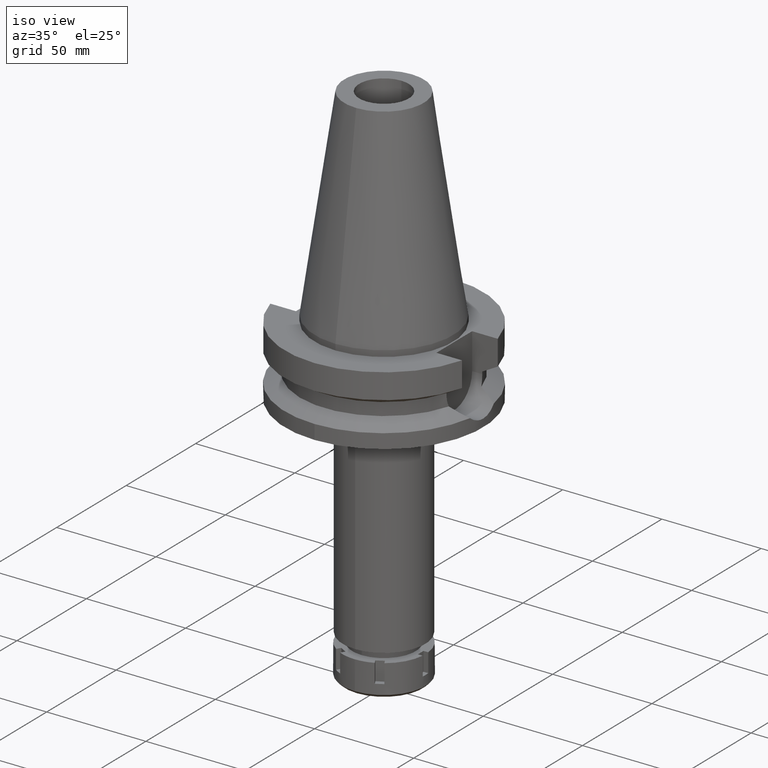
[diagram: clean part render]
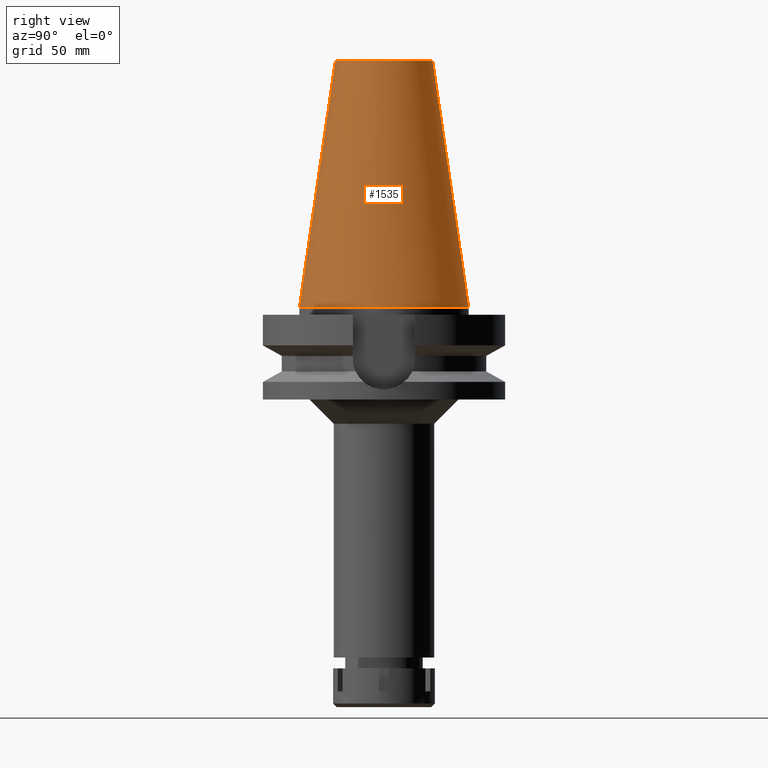
[diagram: tour spotlight — one face highlighted and labeled with its STEP entity id]
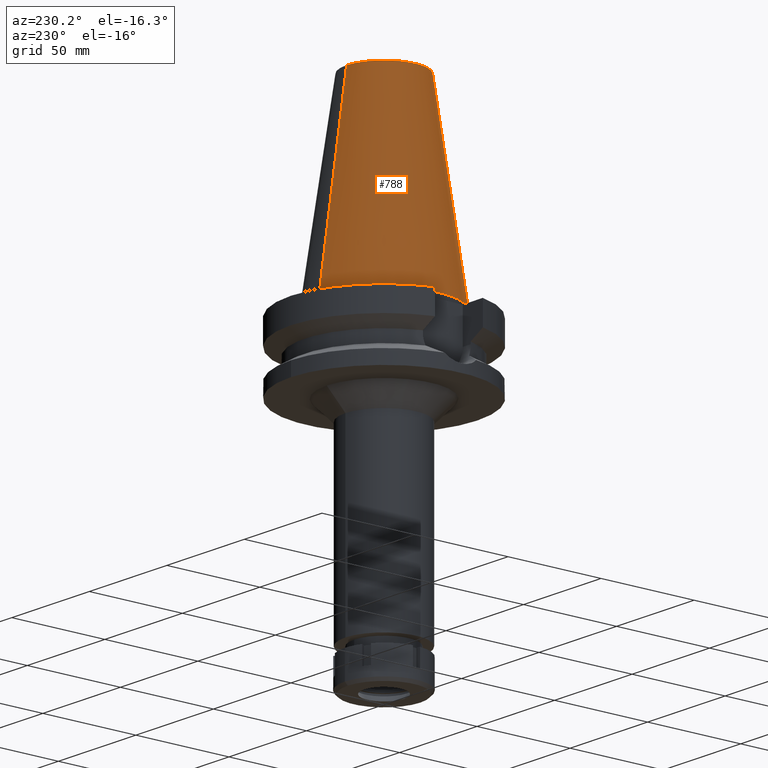
[diagram: tour spotlight — one face highlighted and labeled with its STEP entity id]
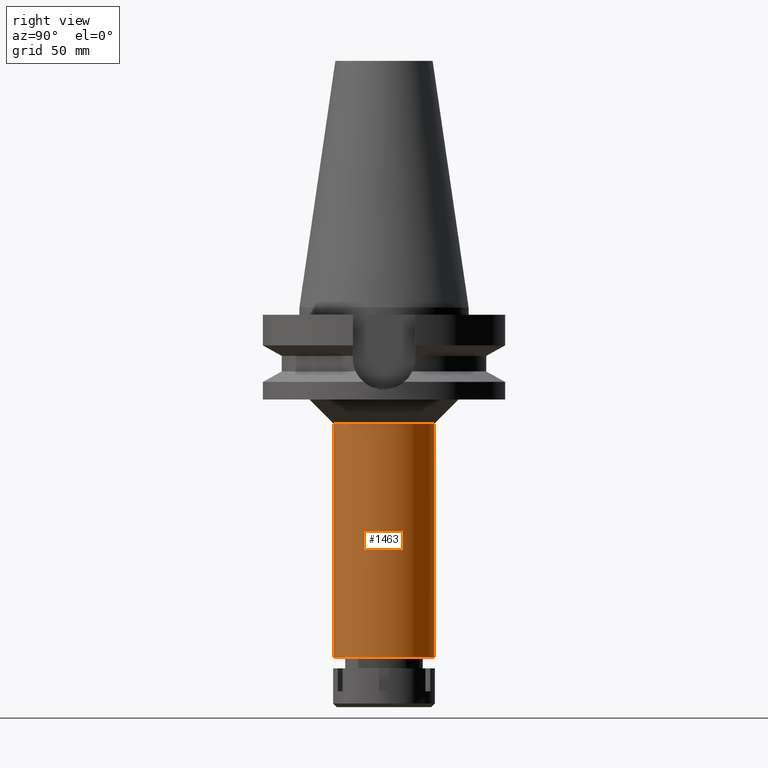
[diagram: tour spotlight — one face highlighted and labeled with its STEP entity id]
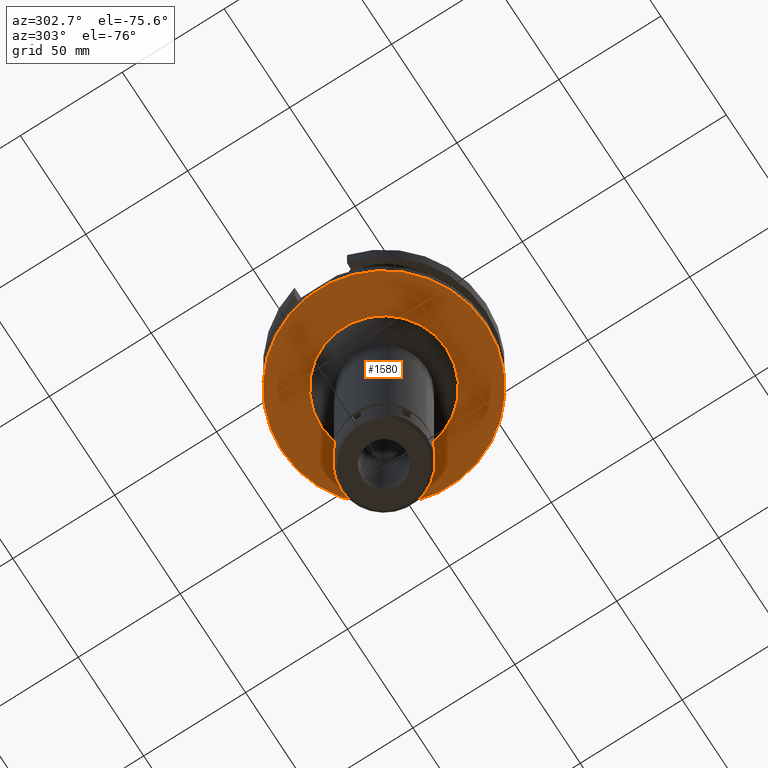
[diagram: tour spotlight — one face highlighted and labeled with its STEP entity id]
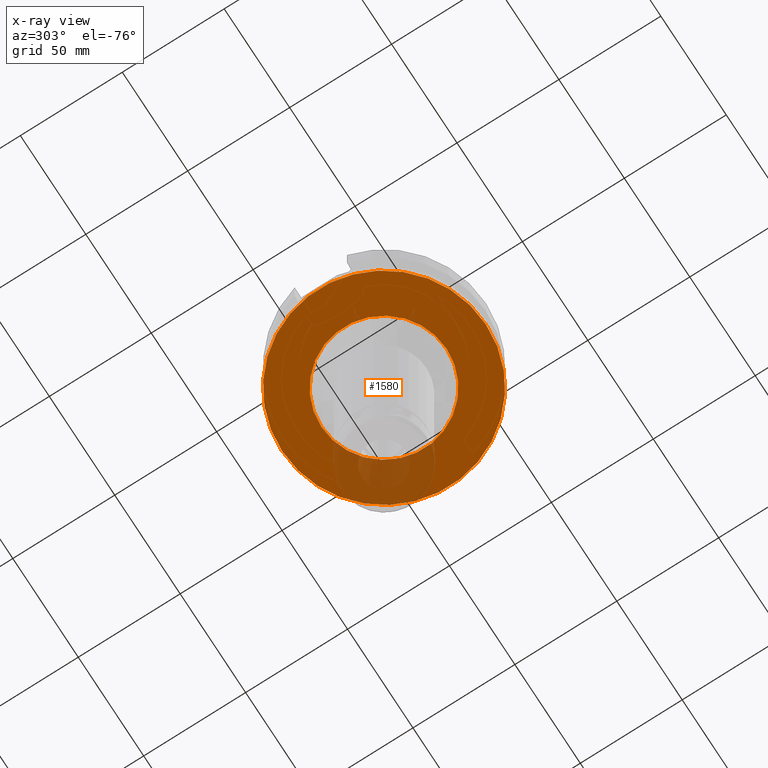
[diagram: x-ray of the same camera — body ghosted, this tour face saturated]
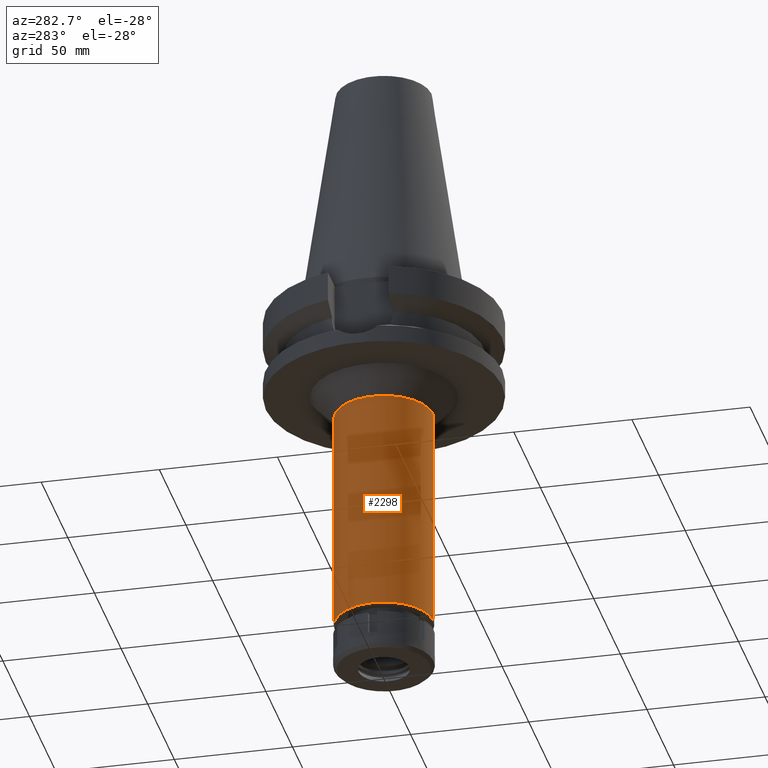
[diagram: tour spotlight — one face highlighted and labeled with its STEP entity id]
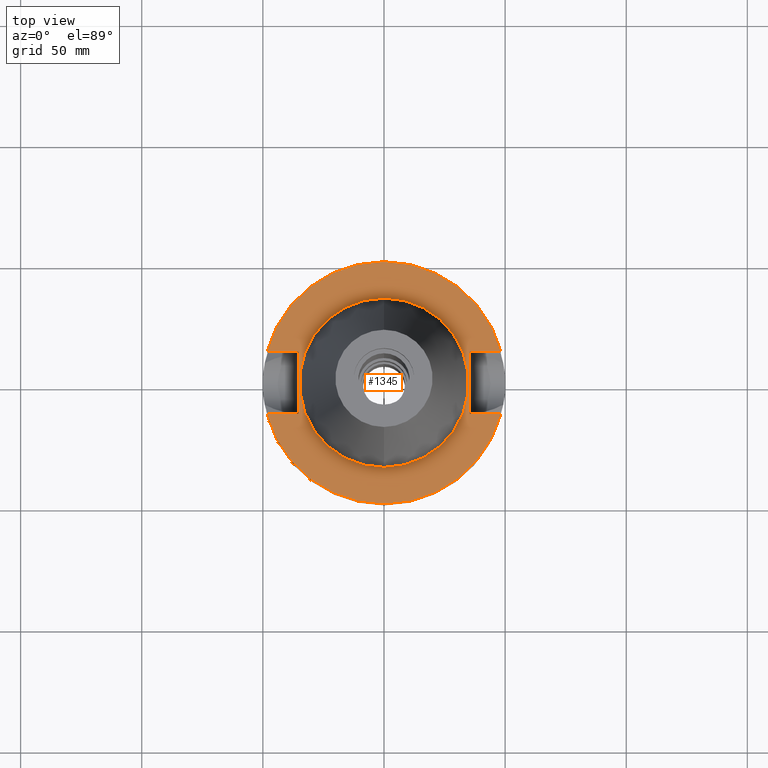
[diagram: tour spotlight — one face highlighted and labeled with its STEP entity id]
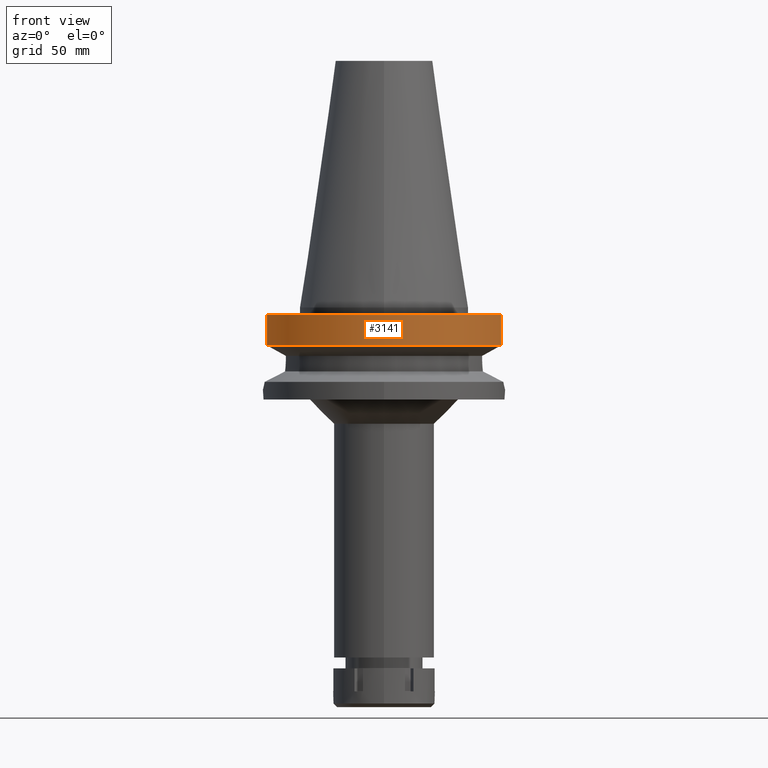
[diagram: tour spotlight — one face highlighted and labeled with its STEP entity id]
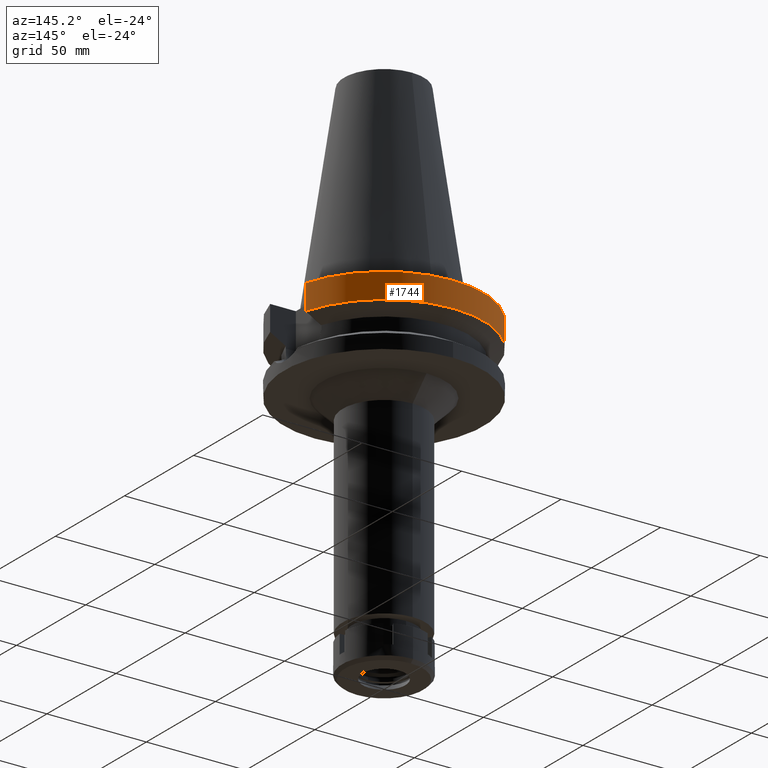
[diagram: tour spotlight — one face highlighted and labeled with its STEP entity id]
A machine part: a face-by-face anatomy tour. The part has 93 B-rep faces; the first image is the clean iso view, then the 8 largest visible faces are spotlighted one at a time (largest first), each with its STEP entity span.

Face 1 — right view, entity #1535. In plain terms, the highlighted conical surface has half-angle 8.297 deg.
Definition (entity closure, byte-faithful):
#101 = CONICAL_SURFACE ( 'NONE', #1184, 27.50221485948000222, 0.1448099680379422438 ) ;
#138 = EDGE_CURVE ( 'NONE', #170, #2703, #1420, .T. ) ;
#168 = CARTESIAN_POINT ( 'NONE',  ( 0.0000000000000000000, 20.07942971896000017, 101.7999999999999972 ) ) ;
#170 = VERTEX_POINT ( 'NONE', #3561 ) ;
#178 = DIRECTION ( 'NONE',  ( 0.0000000000000000000, 0.1443043893538948075, -0.9895333461855641000 ) ) ;
#307 = CARTESIAN_POINT ( 'NONE',  ( 0.0000000000000000000, -20.07942971896000017, 101.7999999999999972 ) ) ;
#350 = EDGE_CURVE ( 'NONE', #1279, #3449, #2427, .T. ) ;
#927 = DIRECTION ( 'NONE',  ( 0.0000000000000000000, -1.000000000000000000, 0.0000000000000000000 ) ) ;
#1184 = AXIS2_PLACEMENT_3D ( 'NONE', #2948, #1538, #927 ) ;
#1279 = VERTEX_POINT ( 'NONE', #168 ) ;
#1338 = ORIENTED_EDGE ( 'NONE', *, *, #138, .F. ) ;
#1420 = CIRCLE ( 'NONE', #3431, 34.92499999999999716 ) ;
#1523 = DIRECTION ( 'NONE',  ( 0.0000000000000000000, 1.000000000000000000, 0.0000000000000000000 ) ) ;
#1535 = ADVANCED_FACE ( 'NONE', ( #1836 ), #101, .T. ) ;
#1538 = DIRECTION ( 'NONE',  ( 0.0000000000000000000, 0.0000000000000000000, -1.000000000000000000 ) ) ;
#1582 = CARTESIAN_POINT ( 'NONE',  ( 0.0000000000000000000, -34.92499999999999716, 5.258016244624999869E-13 ) ) ;
#1611 = LINE ( 'NONE', #2743, #3612 ) ;
#1799 = EDGE_LOOP ( 'NONE', ( #2995, #2977, #1338, #3034 ) ) ;
#1836 = FACE_OUTER_BOUND ( 'NONE', #1799, .T. ) ;
#2270 = DIRECTION ( 'NONE',  ( 0.0000000000000000000, -0.1443043893538948075, -0.9895333461855641000 ) ) ;
#2321 = EDGE_CURVE ( 'NONE', #1279, #170, #1611, .T. ) ;
#2427 = CIRCLE ( 'NONE', #2789, 20.07942971896000017 ) ;
#2560 = LINE ( 'NONE', #3687, #2800 ) ;
#2637 = DIRECTION ( 'NONE',  ( 0.0000000000000000000, 1.000000000000000000, 0.0000000000000000000 ) ) ;
#2703 = VERTEX_POINT ( 'NONE', #1582 ) ;
#2743 = CARTESIAN_POINT ( 'NONE',  ( 0.0000000000000000000, 20.07942971896000017, 101.7999999999999972 ) ) ;
#2789 = AXIS2_PLACEMENT_3D ( 'NONE', #3231, #3006, #1523 ) ;
#2800 = VECTOR ( 'NONE', #2270, 1000.000000000000114 ) ;
#2893 = EDGE_CURVE ( 'NONE', #3449, #2703, #2560, .T. ) ;
#2934 = DIRECTION ( 'NONE',  ( 0.0000000000000000000, 0.0000000000000000000, -1.000000000000000000 ) ) ;
#2948 = CARTESIAN_POINT ( 'NONE',  ( 0.0000000000000000000, 1.847992019912999597E-14, 50.89999999999999858 ) ) ;
#2977 = ORIENTED_EDGE ( 'NONE', *, *, #2893, .T. ) ;
#2995 = ORIENTED_EDGE ( 'NONE', *, *, #350, .T. ) ;
#3006 = DIRECTION ( 'NONE',  ( 0.0000000000000000000, 0.0000000000000000000, -1.000000000000000000 ) ) ;
#3034 = ORIENTED_EDGE ( 'NONE', *, *, #2321, .F. ) ;
#3190 = CARTESIAN_POINT ( 'NONE',  ( 0.0000000000000000000, 1.847992019912999597E-14, 3.979039320256999774E-13 ) ) ;
#3231 = CARTESIAN_POINT ( 'NONE',  ( 0.0000000000000000000, 1.847992019912999597E-14, 101.7999999999999972 ) ) ;
#3431 = AXIS2_PLACEMENT_3D ( 'NONE', #3190, #2934, #2637 ) ;
#3449 = VERTEX_POINT ( 'NONE', #307 ) ;
#3561 = CARTESIAN_POINT ( 'NONE',  ( 0.0000000000000000000, 34.92499999999999716, 5.258016244624999869E-13 ) ) ;
#3612 = VECTOR ( 'NONE', #178, 1000.000000000000114 ) ;
#3687 = CARTESIAN_POINT ( 'NONE',  ( 0.0000000000000000000, -20.07942971896000017, 101.7999999999999972 ) ) ;

Face 2 — auxiliary view, entity #788. In plain terms, the highlighted conical surface has half-angle 8.297 deg.
Definition (entity closure, byte-faithful):
#144 = DIRECTION ( 'NONE',  ( 0.0000000000000000000, -1.000000000000000000, 0.0000000000000000000 ) ) ;
#168 = CARTESIAN_POINT ( 'NONE',  ( 0.0000000000000000000, 20.07942971896000017, 101.7999999999999972 ) ) ;
#170 = VERTEX_POINT ( 'NONE', #3561 ) ;
#178 = DIRECTION ( 'NONE',  ( 0.0000000000000000000, 0.1443043893538948075, -0.9895333461855641000 ) ) ;
#209 = ORIENTED_EDGE ( 'NONE', *, *, #2321, .T. ) ;
#270 = CIRCLE ( 'NONE', #2960, 34.92499999999999716 ) ;
#278 = ORIENTED_EDGE ( 'NONE', *, *, #2893, .F. ) ;
#307 = CARTESIAN_POINT ( 'NONE',  ( 0.0000000000000000000, -20.07942971896000017, 101.7999999999999972 ) ) ;
#688 = CONICAL_SURFACE ( 'NONE', #2070, 27.50221485948000222, 0.1448099680379422438 ) ;
#788 = ADVANCED_FACE ( 'NONE', ( #1606 ), #688, .T. ) ;
#1279 = VERTEX_POINT ( 'NONE', #168 ) ;
#1310 = DIRECTION ( 'NONE',  ( 0.0000000000000000000, 0.0000000000000000000, -1.000000000000000000 ) ) ;
#1334 = CARTESIAN_POINT ( 'NONE',  ( 0.0000000000000000000, 1.847992019912999597E-14, 3.979039320256999774E-13 ) ) ;
#1399 = CARTESIAN_POINT ( 'NONE',  ( 0.0000000000000000000, 1.847992019912999597E-14, 50.89999999999999858 ) ) ;
#1582 = CARTESIAN_POINT ( 'NONE',  ( 0.0000000000000000000, -34.92499999999999716, 5.258016244624999869E-13 ) ) ;
#1606 = FACE_OUTER_BOUND ( 'NONE', #3645, .T. ) ;
#1611 = LINE ( 'NONE', #2743, #3612 ) ;
#1645 = DIRECTION ( 'NONE',  ( 0.0000000000000000000, -1.000000000000000000, 0.0000000000000000000 ) ) ;
#1861 = AXIS2_PLACEMENT_3D ( 'NONE', #3110, #2831, #2983 ) ;
#2070 = AXIS2_PLACEMENT_3D ( 'NONE', #1399, #2238, #1645 ) ;
#2238 = DIRECTION ( 'NONE',  ( 0.0000000000000000000, 0.0000000000000000000, -1.000000000000000000 ) ) ;
#2270 = DIRECTION ( 'NONE',  ( 0.0000000000000000000, -0.1443043893538948075, -0.9895333461855641000 ) ) ;
#2321 = EDGE_CURVE ( 'NONE', #1279, #170, #1611, .T. ) ;
#2560 = LINE ( 'NONE', #3687, #2800 ) ;
#2581 = EDGE_CURVE ( 'NONE', #2703, #170, #270, .T. ) ;
#2703 = VERTEX_POINT ( 'NONE', #1582 ) ;
#2743 = CARTESIAN_POINT ( 'NONE',  ( 0.0000000000000000000, 20.07942971896000017, 101.7999999999999972 ) ) ;
#2800 = VECTOR ( 'NONE', #2270, 1000.000000000000114 ) ;
#2831 = DIRECTION ( 'NONE',  ( 0.0000000000000000000, 0.0000000000000000000, -1.000000000000000000 ) ) ;
#2893 = EDGE_CURVE ( 'NONE', #3449, #2703, #2560, .T. ) ;
#2960 = AXIS2_PLACEMENT_3D ( 'NONE', #1334, #1310, #144 ) ;
#2983 = DIRECTION ( 'NONE',  ( 0.0000000000000000000, -1.000000000000000000, 0.0000000000000000000 ) ) ;
#3005 = ORIENTED_EDGE ( 'NONE', *, *, #3278, .T. ) ;
#3049 = CIRCLE ( 'NONE', #1861, 20.07942971896000017 ) ;
#3110 = CARTESIAN_POINT ( 'NONE',  ( 0.0000000000000000000, 1.847992019912999597E-14, 101.7999999999999972 ) ) ;
#3246 = ORIENTED_EDGE ( 'NONE', *, *, #2581, .F. ) ;
#3278 = EDGE_CURVE ( 'NONE', #3449, #1279, #3049, .T. ) ;
#3449 = VERTEX_POINT ( 'NONE', #307 ) ;
#3561 = CARTESIAN_POINT ( 'NONE',  ( 0.0000000000000000000, 34.92499999999999716, 5.258016244624999869E-13 ) ) ;
#3612 = VECTOR ( 'NONE', #178, 1000.000000000000114 ) ;
#3645 = EDGE_LOOP ( 'NONE', ( #3246, #278, #3005, #209 ) ) ;
#3687 = CARTESIAN_POINT ( 'NONE',  ( 0.0000000000000000000, -20.07942971896000017, 101.7999999999999972 ) ) ;

Face 3 — right view, entity #1463. In plain terms, the highlighted cylindrical surface (partial cylindrical patch) has radius 20.75 mm, axis along (0, 0, -1).
Definition (entity closure, byte-faithful):
#42 = DIRECTION ( 'NONE',  ( 0.0000000000000000000, 0.0000000000000000000, -1.000000000000000000 ) ) ;
#47 = VECTOR ( 'NONE', #42, 1000.000000000000000 ) ;
#128 = VERTEX_POINT ( 'NONE', #142 ) ;
#142 = CARTESIAN_POINT ( 'NONE',  ( 0.0000000000000000000, 20.75000000000000000, -48.00000000000000000 ) ) ;
#155 = ORIENTED_EDGE ( 'NONE', *, *, #411, .T. ) ;
#228 = AXIS2_PLACEMENT_3D ( 'NONE', #1962, #552, #1157 ) ;
#269 = ORIENTED_EDGE ( 'NONE', *, *, #1511, .T. ) ;
#330 = ORIENTED_EDGE ( 'NONE', *, *, #622, .T. ) ;
#351 = LINE ( 'NONE', #1820, #47 ) ;
#411 = EDGE_CURVE ( 'NONE', #128, #3607, #3672, .T. ) ;
#552 = DIRECTION ( 'NONE',  ( 0.0000000000000000000, 0.0000000000000000000, -1.000000000000000000 ) ) ;
#599 = LINE ( 'NONE', #3493, #3372 ) ;
#622 = EDGE_CURVE ( 'NONE', #3607, #3311, #599, .T. ) ;
#652 = EDGE_LOOP ( 'NONE', ( #155, #330, #269, #1966 ) ) ;
#653 = DIRECTION ( 'NONE',  ( 0.0000000000000000000, 0.0000000000000000000, -1.000000000000000000 ) ) ;
#855 = CARTESIAN_POINT ( 'NONE',  ( 0.0000000000000000000, 2.629806536488999751E-14, -144.5000000000000000 ) ) ;
#972 = VERTEX_POINT ( 'NONE', #1697 ) ;
#1157 = DIRECTION ( 'NONE',  ( 0.0000000000000000000, -1.000000000000000000, 0.0000000000000000000 ) ) ;
#1282 = CARTESIAN_POINT ( 'NONE',  ( 0.0000000000000000000, -20.75000000000000000, -48.00000000000000000 ) ) ;
#1463 = ADVANCED_FACE ( 'NONE', ( #3116 ), #2821, .T. ) ;
#1511 = EDGE_CURVE ( 'NONE', #3311, #972, #3380, .T. ) ;
#1581 = DIRECTION ( 'NONE',  ( 0.0000000000000000000, 1.000000000000000000, 0.0000000000000000000 ) ) ;
#1697 = CARTESIAN_POINT ( 'NONE',  ( 0.0000000000000000000, 20.75000000000000000, -144.5000000000000000 ) ) ;
#1728 = DIRECTION ( 'NONE',  ( 0.0000000000000000000, -1.000000000000000000, 0.0000000000000000000 ) ) ;
#1820 = CARTESIAN_POINT ( 'NONE',  ( 0.0000000000000000000, 20.75000000000000000, -48.00000000000000000 ) ) ;
#1840 = AXIS2_PLACEMENT_3D ( 'NONE', #3185, #2677, #1581 ) ;
#1962 = CARTESIAN_POINT ( 'NONE',  ( 0.0000000000000000000, 2.629806536488999751E-14, 114.7399999999999949 ) ) ;
#1966 = ORIENTED_EDGE ( 'NONE', *, *, #2986, .F. ) ;
#2677 = DIRECTION ( 'NONE',  ( 0.0000000000000000000, 0.0000000000000000000, -1.000000000000000000 ) ) ;
#2725 = CARTESIAN_POINT ( 'NONE',  ( 0.0000000000000000000, -20.75000000000000000, -144.5000000000000000 ) ) ;
#2821 = CYLINDRICAL_SURFACE ( 'NONE', #228, 20.75000000000000000 ) ;
#2986 = EDGE_CURVE ( 'NONE', #128, #972, #351, .T. ) ;
#3116 = FACE_OUTER_BOUND ( 'NONE', #652, .T. ) ;
#3130 = DIRECTION ( 'NONE',  ( 0.0000000000000000000, 0.0000000000000000000, 1.000000000000000000 ) ) ;
#3185 = CARTESIAN_POINT ( 'NONE',  ( 0.0000000000000000000, 0.0000000000000000000, -48.00000000000000000 ) ) ;
#3202 = AXIS2_PLACEMENT_3D ( 'NONE', #855, #3130, #1728 ) ;
#3311 = VERTEX_POINT ( 'NONE', #2725 ) ;
#3372 = VECTOR ( 'NONE', #653, 1000.000000000000000 ) ;
#3380 = CIRCLE ( 'NONE', #3202, 20.75000000000000000 ) ;
#3493 = CARTESIAN_POINT ( 'NONE',  ( 0.0000000000000000000, -20.75000000000000000, -48.00000000000000000 ) ) ;
#3607 = VERTEX_POINT ( 'NONE', #1282 ) ;
#3672 = CIRCLE ( 'NONE', #1840, 20.75000000000000000 ) ;

Face 4 — auxiliary view, entity #1580. An x-ray twin of the same camera follows (body ghosted, this face saturated) — the face is partly hidden behind the body. In plain terms, the highlighted planar face has unit normal (0, 0, -1).
Definition (entity closure, byte-faithful):
#38 = AXIS2_PLACEMENT_3D ( 'NONE', #1257, #2670, #3525 ) ;
#154 = CIRCLE ( 'NONE', #1661, 50.00000000000000000 ) ;
#205 = EDGE_CURVE ( 'NONE', #1014, #2460, #154, .T. ) ;
#352 = PLANE ( 'NONE',  #38 ) ;
#434 = DIRECTION ( 'NONE',  ( 0.0000000000000000000, 1.000000000000000000, 0.0000000000000000000 ) ) ;
#578 = CIRCLE ( 'NONE', #1846, 50.00000000000000000 ) ;
#908 = CARTESIAN_POINT ( 'NONE',  ( 0.0000000000000000000, -30.75000000000000000, -38.00000000000000000 ) ) ;
#1006 = DIRECTION ( 'NONE',  ( 0.0000000000000000000, -1.000000000000000000, 0.0000000000000000000 ) ) ;
#1014 = VERTEX_POINT ( 'NONE', #1711 ) ;
#1059 = AXIS2_PLACEMENT_3D ( 'NONE', #2678, #3249, #434 ) ;
#1091 = ORIENTED_EDGE ( 'NONE', *, *, #3298, .F. ) ;
#1143 = EDGE_CURVE ( 'NONE', #1567, #2149, #2669, .T. ) ;
#1257 = CARTESIAN_POINT ( 'NONE',  ( 0.0000000000000000000, 0.0000000000000000000, -38.00000000000000000 ) ) ;
#1273 = FACE_OUTER_BOUND ( 'NONE', #2720, .T. ) ;
#1382 = AXIS2_PLACEMENT_3D ( 'NONE', #2421, #3557, #1006 ) ;
#1403 = EDGE_CURVE ( 'NONE', #2460, #1014, #578, .T. ) ;
#1429 = CARTESIAN_POINT ( 'NONE',  ( 0.0000000000000000000, 2.629806536488999751E-14, -38.00000000000000000 ) ) ;
#1567 = VERTEX_POINT ( 'NONE', #2071 ) ;
#1580 = ADVANCED_FACE ( 'NONE', ( #1273, #3263 ), #352, .T. ) ;
#1661 = AXIS2_PLACEMENT_3D ( 'NONE', #3568, #3214, #2187 ) ;
#1711 = CARTESIAN_POINT ( 'NONE',  ( 0.0000000000000000000, 50.00000000000000000, -38.00000000000000000 ) ) ;
#1846 = AXIS2_PLACEMENT_3D ( 'NONE', #1429, #2855, #2579 ) ;
#2026 = ORIENTED_EDGE ( 'NONE', *, *, #205, .F. ) ;
#2071 = CARTESIAN_POINT ( 'NONE',  ( 0.0000000000000000000, 30.75000000000000000, -38.00000000000000000 ) ) ;
#2090 = CIRCLE ( 'NONE', #1382, 30.75000000000000000 ) ;
#2143 = ORIENTED_EDGE ( 'NONE', *, *, #1403, .F. ) ;
#2149 = VERTEX_POINT ( 'NONE', #908 ) ;
#2187 = DIRECTION ( 'NONE',  ( 0.0000000000000000000, 1.000000000000000000, 0.0000000000000000000 ) ) ;
#2421 = CARTESIAN_POINT ( 'NONE',  ( 0.0000000000000000000, 0.0000000000000000000, -38.00000000000000000 ) ) ;
#2460 = VERTEX_POINT ( 'NONE', #3194 ) ;
#2579 = DIRECTION ( 'NONE',  ( 0.0000000000000000000, -1.000000000000000000, 0.0000000000000000000 ) ) ;
#2669 = CIRCLE ( 'NONE', #1059, 30.75000000000000000 ) ;
#2670 = DIRECTION ( 'NONE',  ( 0.0000000000000000000, 0.0000000000000000000, -1.000000000000000000 ) ) ;
#2678 = CARTESIAN_POINT ( 'NONE',  ( 0.0000000000000000000, 0.0000000000000000000, -38.00000000000000000 ) ) ;
#2720 = EDGE_LOOP ( 'NONE', ( #2026, #2143 ) ) ;
#2744 = ORIENTED_EDGE ( 'NONE', *, *, #1143, .F. ) ;
#2790 = EDGE_LOOP ( 'NONE', ( #2744, #1091 ) ) ;
#2855 = DIRECTION ( 'NONE',  ( 0.0000000000000000000, 0.0000000000000000000, 1.000000000000000000 ) ) ;
#3194 = CARTESIAN_POINT ( 'NONE',  ( 0.0000000000000000000, -50.00000000000000000, -38.00000000000000000 ) ) ;
#3214 = DIRECTION ( 'NONE',  ( 0.0000000000000000000, 0.0000000000000000000, 1.000000000000000000 ) ) ;
#3249 = DIRECTION ( 'NONE',  ( 0.0000000000000000000, 0.0000000000000000000, -1.000000000000000000 ) ) ;
#3263 = FACE_BOUND ( 'NONE', #2790, .T. ) ;
#3298 = EDGE_CURVE ( 'NONE', #2149, #1567, #2090, .T. ) ;
#3525 = DIRECTION ( 'NONE',  ( 0.0000000000000000000, -1.000000000000000000, 0.0000000000000000000 ) ) ;
#3557 = DIRECTION ( 'NONE',  ( 0.0000000000000000000, 0.0000000000000000000, -1.000000000000000000 ) ) ;
#3568 = CARTESIAN_POINT ( 'NONE',  ( 0.0000000000000000000, 2.629806536488999751E-14, -38.00000000000000000 ) ) ;

Face 5 — auxiliary view, entity #2298. In plain terms, the highlighted cylindrical surface (partial cylindrical patch) has radius 20.75 mm, axis along (0, 0, -1).
Definition (entity closure, byte-faithful):
#42 = DIRECTION ( 'NONE',  ( 0.0000000000000000000, 0.0000000000000000000, -1.000000000000000000 ) ) ;
#47 = VECTOR ( 'NONE', #42, 1000.000000000000000 ) ;
#128 = VERTEX_POINT ( 'NONE', #142 ) ;
#142 = CARTESIAN_POINT ( 'NONE',  ( 0.0000000000000000000, 20.75000000000000000, -48.00000000000000000 ) ) ;
#161 = DIRECTION ( 'NONE',  ( 0.0000000000000000000, 0.0000000000000000000, -1.000000000000000000 ) ) ;
#351 = LINE ( 'NONE', #1820, #47 ) ;
#392 = AXIS2_PLACEMENT_3D ( 'NONE', #1303, #2440, #1056 ) ;
#599 = LINE ( 'NONE', #3493, #3372 ) ;
#622 = EDGE_CURVE ( 'NONE', #3607, #3311, #599, .T. ) ;
#653 = DIRECTION ( 'NONE',  ( 0.0000000000000000000, 0.0000000000000000000, -1.000000000000000000 ) ) ;
#654 = CARTESIAN_POINT ( 'NONE',  ( 0.0000000000000000000, 2.629806536488999751E-14, -144.5000000000000000 ) ) ;
#796 = ORIENTED_EDGE ( 'NONE', *, *, #3625, .T. ) ;
#972 = VERTEX_POINT ( 'NONE', #1697 ) ;
#1026 = CARTESIAN_POINT ( 'NONE',  ( 0.0000000000000000000, 0.0000000000000000000, -48.00000000000000000 ) ) ;
#1056 = DIRECTION ( 'NONE',  ( 0.0000000000000000000, -1.000000000000000000, 0.0000000000000000000 ) ) ;
#1159 = EDGE_LOOP ( 'NONE', ( #796, #1434, #2869, #3675 ) ) ;
#1282 = CARTESIAN_POINT ( 'NONE',  ( 0.0000000000000000000, -20.75000000000000000, -48.00000000000000000 ) ) ;
#1303 = CARTESIAN_POINT ( 'NONE',  ( 0.0000000000000000000, 2.629806536488999751E-14, 114.7399999999999949 ) ) ;
#1306 = DIRECTION ( 'NONE',  ( 0.0000000000000000000, -1.000000000000000000, 0.0000000000000000000 ) ) ;
#1434 = ORIENTED_EDGE ( 'NONE', *, *, #622, .F. ) ;
#1697 = CARTESIAN_POINT ( 'NONE',  ( 0.0000000000000000000, 20.75000000000000000, -144.5000000000000000 ) ) ;
#1820 = CARTESIAN_POINT ( 'NONE',  ( 0.0000000000000000000, 20.75000000000000000, -48.00000000000000000 ) ) ;
#1830 = DIRECTION ( 'NONE',  ( 0.0000000000000000000, 0.0000000000000000000, 1.000000000000000000 ) ) ;
#2210 = CIRCLE ( 'NONE', #3693, 20.75000000000000000 ) ;
#2298 = ADVANCED_FACE ( 'NONE', ( #2476 ), #3611, .T. ) ;
#2440 = DIRECTION ( 'NONE',  ( 0.0000000000000000000, 0.0000000000000000000, -1.000000000000000000 ) ) ;
#2476 = FACE_OUTER_BOUND ( 'NONE', #1159, .T. ) ;
#2725 = CARTESIAN_POINT ( 'NONE',  ( 0.0000000000000000000, -20.75000000000000000, -144.5000000000000000 ) ) ;
#2752 = CIRCLE ( 'NONE', #3279, 20.75000000000000000 ) ;
#2869 = ORIENTED_EDGE ( 'NONE', *, *, #3314, .T. ) ;
#2941 = DIRECTION ( 'NONE',  ( 0.0000000000000000000, 1.000000000000000000, 0.0000000000000000000 ) ) ;
#2986 = EDGE_CURVE ( 'NONE', #128, #972, #351, .T. ) ;
#3279 = AXIS2_PLACEMENT_3D ( 'NONE', #1026, #161, #1306 ) ;
#3311 = VERTEX_POINT ( 'NONE', #2725 ) ;
#3314 = EDGE_CURVE ( 'NONE', #3607, #128, #2752, .T. ) ;
#3372 = VECTOR ( 'NONE', #653, 1000.000000000000000 ) ;
#3493 = CARTESIAN_POINT ( 'NONE',  ( 0.0000000000000000000, -20.75000000000000000, -48.00000000000000000 ) ) ;
#3607 = VERTEX_POINT ( 'NONE', #1282 ) ;
#3611 = CYLINDRICAL_SURFACE ( 'NONE', #392, 20.75000000000000000 ) ;
#3625 = EDGE_CURVE ( 'NONE', #972, #3311, #2210, .T. ) ;
#3675 = ORIENTED_EDGE ( 'NONE', *, *, #2986, .T. ) ;
#3693 = AXIS2_PLACEMENT_3D ( 'NONE', #654, #1830, #2941 ) ;

Face 6 — top view, entity #1345. In plain terms, the highlighted planar face has unit normal (0, 0, -1).
Definition (entity closure, byte-faithful):
#37 = LINE ( 'NONE', #1190, #2451 ) ;
#156 = CIRCLE ( 'NONE', #2488, 50.00000000000000000 ) ;
#157 = CARTESIAN_POINT ( 'NONE',  ( -35.39999999999999858, 12.84999999999999964, -3.000000000000000000 ) ) ;
#386 = CARTESIAN_POINT ( 'NONE',  ( -48.32057015392000210, -12.84999999999999964, -3.000000000000000000 ) ) ;
#398 = DIRECTION ( 'NONE',  ( 0.0000000000000000000, 0.0000000000000000000, -1.000000000000000000 ) ) ;
#488 = FACE_BOUND ( 'NONE', #1843, .T. ) ;
#537 = ORIENTED_EDGE ( 'NONE', *, *, #1230, .T. ) ;
#543 = ORIENTED_EDGE ( 'NONE', *, *, #2996, .F. ) ;
#638 = DIRECTION ( 'NONE',  ( 0.0000000000000000000, 0.0000000000000000000, -1.000000000000000000 ) ) ;
#671 = EDGE_CURVE ( 'NONE', #2224, #2987, #156, .T. ) ;
#700 = LINE ( 'NONE', #1859, #2494 ) ;
#723 = ORIENTED_EDGE ( 'NONE', *, *, #2226, .F. ) ;
#729 = VERTEX_POINT ( 'NONE', #1529 ) ;
#744 = VERTEX_POINT ( 'NONE', #2957 ) ;
#747 = CARTESIAN_POINT ( 'NONE',  ( -48.32057015392000210, 12.84999999999999964, -3.000000000000000000 ) ) ;
#781 = DIRECTION ( 'NONE',  ( 0.0000000000000000000, -1.000000000000000000, 0.0000000000000000000 ) ) ;
#822 = VECTOR ( 'NONE', #3472, 1000.000000000000000 ) ;
#845 = VERTEX_POINT ( 'NONE', #2791 ) ;
#893 = CARTESIAN_POINT ( 'NONE',  ( 0.0000000000000000000, 2.629806536488999751E-14, -3.000000000000000000 ) ) ;
#957 = DIRECTION ( 'NONE',  ( 0.0000000000000000000, -1.000000000000000000, 0.0000000000000000000 ) ) ;
#974 = DIRECTION ( 'NONE',  ( 0.0000000000000000000, 0.0000000000000000000, 1.000000000000000000 ) ) ;
#1050 = VECTOR ( 'NONE', #1648, 1000.000000000000000 ) ;
#1053 = EDGE_CURVE ( 'NONE', #729, #3000, #1783, .T. ) ;
#1065 = CARTESIAN_POINT ( 'NONE',  ( 0.0000000000000000000, 1.187907395172999884E-14, -3.000000000000000000 ) ) ;
#1072 = AXIS2_PLACEMENT_3D ( 'NONE', #893, #638, #1537 ) ;
#1123 = VERTEX_POINT ( 'NONE', #2656 ) ;
#1127 = CIRCLE ( 'NONE', #1072, 50.00000000000000000 ) ;
#1153 = VERTEX_POINT ( 'NONE', #1559 ) ;
#1187 = EDGE_CURVE ( 'NONE', #1123, #2224, #3268, .T. ) ;
#1190 = CARTESIAN_POINT ( 'NONE',  ( -35.39999999999999858, -12.84999999999999964, -3.000000000000000000 ) ) ;
#1205 = ORIENTED_EDGE ( 'NONE', *, *, #671, .F. ) ;
#1230 = EDGE_CURVE ( 'NONE', #1153, #2987, #700, .T. ) ;
#1244 = AXIS2_PLACEMENT_3D ( 'NONE', #3210, #974, #957 ) ;
#1284 = CARTESIAN_POINT ( 'NONE',  ( 48.32057015392000210, -12.84999999999999964, -3.000000000000000000 ) ) ;
#1345 = ADVANCED_FACE ( 'NONE', ( #1912, #488 ), #3620, .F. ) ;
#1367 = CARTESIAN_POINT ( 'NONE',  ( 35.39999999999999858, 12.84999999999999964, -3.000000000000000000 ) ) ;
#1501 = CARTESIAN_POINT ( 'NONE',  ( 0.0000000000000000000, 34.92499999999999716, -3.000000000000000000 ) ) ;
#1529 = CARTESIAN_POINT ( 'NONE',  ( 0.0000000000000000000, -34.92499999999999716, -3.000000000000000000 ) ) ;
#1537 = DIRECTION ( 'NONE',  ( 0.0000000000000000000, 1.000000000000000000, 0.0000000000000000000 ) ) ;
#1559 = CARTESIAN_POINT ( 'NONE',  ( -35.39999999999999858, -12.84999999999999964, -3.000000000000000000 ) ) ;
#1612 = EDGE_LOOP ( 'NONE', ( #537, #1205, #2861, #3676, #2267, #543, #723, #3220 ) ) ;
#1648 = DIRECTION ( 'NONE',  ( -1.000000000000000000, 0.0000000000000000000, 0.0000000000000000000 ) ) ;
#1783 = CIRCLE ( 'NONE', #1244, 34.92499999999999716 ) ;
#1793 = AXIS2_PLACEMENT_3D ( 'NONE', #1065, #3342, #781 ) ;
#1813 = EDGE_CURVE ( 'NONE', #3317, #845, #2479, .T. ) ;
#1824 = CARTESIAN_POINT ( 'NONE',  ( 35.39999999999999858, -12.84999999999999964, -3.000000000000000000 ) ) ;
#1843 = EDGE_LOOP ( 'NONE', ( #3275, #3015 ) ) ;
#1847 = CARTESIAN_POINT ( 'NONE',  ( 0.0000000000000000000, 2.629806536488999751E-14, -3.000000000000000000 ) ) ;
#1859 = CARTESIAN_POINT ( 'NONE',  ( -35.39999999999999858, -12.84999999999999964, -3.000000000000000000 ) ) ;
#1912 = FACE_OUTER_BOUND ( 'NONE', #1612, .T. ) ;
#1923 = EDGE_CURVE ( 'NONE', #3317, #1123, #2798, .T. ) ;
#2138 = DIRECTION ( 'NONE',  ( 0.0000000000000000000, -1.000000000000000000, 0.0000000000000000000 ) ) ;
#2175 = LINE ( 'NONE', #157, #1050 ) ;
#2224 = VERTEX_POINT ( 'NONE', #1284 ) ;
#2226 = EDGE_CURVE ( 'NONE', #744, #2290, #2175, .T. ) ;
#2264 = DIRECTION ( 'NONE',  ( 0.0000000000000000000, 1.000000000000000000, 0.0000000000000000000 ) ) ;
#2267 = ORIENTED_EDGE ( 'NONE', *, *, #1813, .T. ) ;
#2290 = VERTEX_POINT ( 'NONE', #747 ) ;
#2445 = CARTESIAN_POINT ( 'NONE',  ( 35.39999999999999858, 12.84999999999999964, -3.000000000000000000 ) ) ;
#2451 = VECTOR ( 'NONE', #2264, 1000.000000000000000 ) ;
#2479 = LINE ( 'NONE', #1367, #2498 ) ;
#2480 = EDGE_CURVE ( 'NONE', #3000, #729, #3428, .T. ) ;
#2488 = AXIS2_PLACEMENT_3D ( 'NONE', #1847, #398, #2138 ) ;
#2494 = VECTOR ( 'NONE', #3359, 1000.000000000000000 ) ;
#2496 = CARTESIAN_POINT ( 'NONE',  ( 0.0000000000000000000, 2.629806536488999751E-14, -3.000000000000000000 ) ) ;
#2498 = VECTOR ( 'NONE', #2726, 1000.000000000000000 ) ;
#2656 = CARTESIAN_POINT ( 'NONE',  ( 35.39999999999999858, -12.84999999999999964, -3.000000000000000000 ) ) ;
#2726 = DIRECTION ( 'NONE',  ( 1.000000000000000000, 0.0000000000000000000, 0.0000000000000000000 ) ) ;
#2791 = CARTESIAN_POINT ( 'NONE',  ( 48.32057015392000210, 12.84999999999999964, -3.000000000000000000 ) ) ;
#2798 = LINE ( 'NONE', #3423, #3501 ) ;
#2843 = DIRECTION ( 'NONE',  ( 0.0000000000000000000, 0.0000000000000000000, 1.000000000000000000 ) ) ;
#2861 = ORIENTED_EDGE ( 'NONE', *, *, #1187, .F. ) ;
#2957 = CARTESIAN_POINT ( 'NONE',  ( -35.39999999999999858, 12.84999999999999964, -3.000000000000000000 ) ) ;
#2987 = VERTEX_POINT ( 'NONE', #386 ) ;
#2996 = EDGE_CURVE ( 'NONE', #2290, #845, #1127, .T. ) ;
#3000 = VERTEX_POINT ( 'NONE', #1501 ) ;
#3015 = ORIENTED_EDGE ( 'NONE', *, *, #1053, .F. ) ;
#3020 = AXIS2_PLACEMENT_3D ( 'NONE', #2496, #2843, #3453 ) ;
#3210 = CARTESIAN_POINT ( 'NONE',  ( 0.0000000000000000000, 2.629806536488999751E-14, -3.000000000000000000 ) ) ;
#3220 = ORIENTED_EDGE ( 'NONE', *, *, #3366, .F. ) ;
#3268 = LINE ( 'NONE', #1824, #822 ) ;
#3275 = ORIENTED_EDGE ( 'NONE', *, *, #2480, .F. ) ;
#3317 = VERTEX_POINT ( 'NONE', #2445 ) ;
#3342 = DIRECTION ( 'NONE',  ( 0.0000000000000000000, 0.0000000000000000000, -1.000000000000000000 ) ) ;
#3359 = DIRECTION ( 'NONE',  ( -1.000000000000000000, 0.0000000000000000000, 0.0000000000000000000 ) ) ;
#3366 = EDGE_CURVE ( 'NONE', #1153, #744, #37, .T. ) ;
#3405 = DIRECTION ( 'NONE',  ( 0.0000000000000000000, -1.000000000000000000, 0.0000000000000000000 ) ) ;
#3423 = CARTESIAN_POINT ( 'NONE',  ( 35.39999999999999858, 12.84999999999999964, -3.000000000000000000 ) ) ;
#3428 = CIRCLE ( 'NONE', #3020, 34.92499999999999716 ) ;
#3453 = DIRECTION ( 'NONE',  ( 0.0000000000000000000, 1.000000000000000000, 0.0000000000000000000 ) ) ;
#3472 = DIRECTION ( 'NONE',  ( 1.000000000000000000, 0.0000000000000000000, 0.0000000000000000000 ) ) ;
#3501 = VECTOR ( 'NONE', #3405, 1000.000000000000000 ) ;
#3620 = PLANE ( 'NONE',  #1793 ) ;
#3676 = ORIENTED_EDGE ( 'NONE', *, *, #1923, .F. ) ;

Face 7 — front view, entity #3141. In plain terms, the highlighted cylindrical surface (partial cylindrical patch) has radius 50 mm, axis along (0, 0, -1).
Definition (entity closure, byte-faithful):
#64 = LINE ( 'NONE', #2340, #1015 ) ;
#156 = CIRCLE ( 'NONE', #2488, 50.00000000000000000 ) ;
#386 = CARTESIAN_POINT ( 'NONE',  ( -48.32057015392000210, -12.84999999999999964, -3.000000000000000000 ) ) ;
#398 = DIRECTION ( 'NONE',  ( 0.0000000000000000000, 0.0000000000000000000, -1.000000000000000000 ) ) ;
#574 = AXIS2_PLACEMENT_3D ( 'NONE', #2512, #3646, #1092 ) ;
#671 = EDGE_CURVE ( 'NONE', #2224, #2987, #156, .T. ) ;
#702 = VERTEX_POINT ( 'NONE', #2413 ) ;
#719 = LINE ( 'NONE', #2467, #2351 ) ;
#887 = EDGE_CURVE ( 'NONE', #702, #978, #1844, .T. ) ;
#978 = VERTEX_POINT ( 'NONE', #2329 ) ;
#1015 = VECTOR ( 'NONE', #3481, 999.9999999999998863 ) ;
#1092 = DIRECTION ( 'NONE',  ( 0.0000000000000000000, -1.000000000000000000, 0.0000000000000000000 ) ) ;
#1284 = CARTESIAN_POINT ( 'NONE',  ( 48.32057015392000210, -12.84999999999999964, -3.000000000000000000 ) ) ;
#1295 = ORIENTED_EDGE ( 'NONE', *, *, #2625, .F. ) ;
#1594 = CYLINDRICAL_SURFACE ( 'NONE', #2262, 50.00000000000000000 ) ;
#1636 = FACE_OUTER_BOUND ( 'NONE', #2851, .T. ) ;
#1642 = ORIENTED_EDGE ( 'NONE', *, *, #671, .T. ) ;
#1739 = ORIENTED_EDGE ( 'NONE', *, *, #887, .T. ) ;
#1844 = CIRCLE ( 'NONE', #574, 50.00000000000000000 ) ;
#1847 = CARTESIAN_POINT ( 'NONE',  ( 0.0000000000000000000, 2.629806536488999751E-14, -3.000000000000000000 ) ) ;
#1869 = DIRECTION ( 'NONE',  ( 0.0000000000000000000, -1.000000000000000000, 0.0000000000000000000 ) ) ;
#2040 = ORIENTED_EDGE ( 'NONE', *, *, #3104, .F. ) ;
#2138 = DIRECTION ( 'NONE',  ( 0.0000000000000000000, -1.000000000000000000, 0.0000000000000000000 ) ) ;
#2224 = VERTEX_POINT ( 'NONE', #1284 ) ;
#2262 = AXIS2_PLACEMENT_3D ( 'NONE', #2745, #2462, #1869 ) ;
#2329 = CARTESIAN_POINT ( 'NONE',  ( 48.32057015392000210, -12.84999999999999964, -15.66269223573000069 ) ) ;
#2340 = CARTESIAN_POINT ( 'NONE',  ( 48.32057015392000210, -12.84999999999999964, -3.000000000000000000 ) ) ;
#2351 = VECTOR ( 'NONE', #3050, 1000.000000000000114 ) ;
#2413 = CARTESIAN_POINT ( 'NONE',  ( -48.32056912814000071, -12.85000385727999905, -15.66265768250999990 ) ) ;
#2462 = DIRECTION ( 'NONE',  ( 0.0000000000000000000, 0.0000000000000000000, -1.000000000000000000 ) ) ;
#2467 = CARTESIAN_POINT ( 'NONE',  ( -48.32056912814000071, -12.85000385727999905, -15.66265768250999990 ) ) ;
#2488 = AXIS2_PLACEMENT_3D ( 'NONE', #1847, #398, #2138 ) ;
#2512 = CARTESIAN_POINT ( 'NONE',  ( 0.0000000000000000000, 1.006319759053999930E-14, -15.66269223573000069 ) ) ;
#2625 = EDGE_CURVE ( 'NONE', #702, #2987, #719, .T. ) ;
#2745 = CARTESIAN_POINT ( 'NONE',  ( 0.0000000000000000000, 2.629806536488999751E-14, 114.7399999999999949 ) ) ;
#2851 = EDGE_LOOP ( 'NONE', ( #1295, #1739, #2040, #1642 ) ) ;
#2987 = VERTEX_POINT ( 'NONE', #386 ) ;
#3050 = DIRECTION ( 'NONE',  ( -8.100800697240604101E-08, 3.046187202870850882E-07, 0.9999999999999503730 ) ) ;
#3104 = EDGE_CURVE ( 'NONE', #2224, #978, #64, .T. ) ;
#3141 = ADVANCED_FACE ( 'NONE', ( #1636 ), #1594, .T. ) ;
#3481 = DIRECTION ( 'NONE',  ( -8.103519278860602309E-08, -3.047209459813850567E-07, -0.9999999999999503730 ) ) ;
#3646 = DIRECTION ( 'NONE',  ( 0.0000000000000000000, 0.0000000000000000000, 1.000000000000000000 ) ) ;

Face 8 — auxiliary view, entity #1744. In plain terms, the highlighted cylindrical surface (partial cylindrical patch) has radius 50 mm, axis along (0, 0, -1).
Definition (entity closure, byte-faithful):
#40 = CARTESIAN_POINT ( 'NONE',  ( -48.32056912780999625, 12.85000385852000093, -15.66265767138999898 ) ) ;
#91 = LINE ( 'NONE', #1269, #2008 ) ;
#287 = AXIS2_PLACEMENT_3D ( 'NONE', #383, #3466, #2885 ) ;
#383 = CARTESIAN_POINT ( 'NONE',  ( 0.0000000000000000000, 1.006319759053999930E-14, -15.66269223573000069 ) ) ;
#456 = EDGE_CURVE ( 'NONE', #2290, #2141, #91, .T. ) ;
#463 = FACE_OUTER_BOUND ( 'NONE', #3632, .T. ) ;
#638 = DIRECTION ( 'NONE',  ( 0.0000000000000000000, 0.0000000000000000000, -1.000000000000000000 ) ) ;
#717 = ORIENTED_EDGE ( 'NONE', *, *, #2106, .T. ) ;
#747 = CARTESIAN_POINT ( 'NONE',  ( -48.32057015392000210, 12.84999999999999964, -3.000000000000000000 ) ) ;
#804 = CARTESIAN_POINT ( 'NONE',  ( 48.32056912815000516, 12.85000385725999905, -15.66265768273000170 ) ) ;
#845 = VERTEX_POINT ( 'NONE', #2791 ) ;
#893 = CARTESIAN_POINT ( 'NONE',  ( 0.0000000000000000000, 2.629806536488999751E-14, -3.000000000000000000 ) ) ;
#906 = EDGE_CURVE ( 'NONE', #2596, #845, #3363, .T. ) ;
#946 = CIRCLE ( 'NONE', #287, 50.00000000000000000 ) ;
#1036 = ORIENTED_EDGE ( 'NONE', *, *, #456, .F. ) ;
#1072 = AXIS2_PLACEMENT_3D ( 'NONE', #893, #638, #1537 ) ;
#1127 = CIRCLE ( 'NONE', #1072, 50.00000000000000000 ) ;
#1269 = CARTESIAN_POINT ( 'NONE',  ( -48.32057015392000210, 12.84999999999999964, -3.000000000000000000 ) ) ;
#1307 = DIRECTION ( 'NONE',  ( 0.0000000000000000000, 0.0000000000000000000, -1.000000000000000000 ) ) ;
#1385 = ORIENTED_EDGE ( 'NONE', *, *, #2996, .T. ) ;
#1537 = DIRECTION ( 'NONE',  ( 0.0000000000000000000, 1.000000000000000000, 0.0000000000000000000 ) ) ;
#1564 = ORIENTED_EDGE ( 'NONE', *, *, #906, .F. ) ;
#1744 = ADVANCED_FACE ( 'NONE', ( #463 ), #3580, .T. ) ;
#1871 = DIRECTION ( 'NONE',  ( 0.0000000000000000000, -1.000000000000000000, 0.0000000000000000000 ) ) ;
#1876 = CARTESIAN_POINT ( 'NONE',  ( 48.32056912815000516, 12.85000385725999905, -15.66265768273000170 ) ) ;
#2008 = VECTOR ( 'NONE', #3258, 1000.000000000000114 ) ;
#2106 = EDGE_CURVE ( 'NONE', #2596, #2141, #946, .T. ) ;
#2141 = VERTEX_POINT ( 'NONE', #40 ) ;
#2252 = AXIS2_PLACEMENT_3D ( 'NONE', #3633, #1307, #1871 ) ;
#2290 = VERTEX_POINT ( 'NONE', #747 ) ;
#2596 = VERTEX_POINT ( 'NONE', #1876 ) ;
#2791 = CARTESIAN_POINT ( 'NONE',  ( 48.32057015392000210, 12.84999999999999964, -3.000000000000000000 ) ) ;
#2885 = DIRECTION ( 'NONE',  ( 0.0000000000000000000, 1.000000000000000000, 0.0000000000000000000 ) ) ;
#2996 = EDGE_CURVE ( 'NONE', #2290, #845, #1127, .T. ) ;
#3088 = DIRECTION ( 'NONE',  ( 8.100749521826603165E-08, -3.046167948962851084E-07, 0.9999999999999503730 ) ) ;
#3090 = VECTOR ( 'NONE', #3088, 1000.000000000000114 ) ;
#3258 = DIRECTION ( 'NONE',  ( 8.103406434828602822E-08, 3.047167049311851409E-07, -0.9999999999999503730 ) ) ;
#3363 = LINE ( 'NONE', #804, #3090 ) ;
#3466 = DIRECTION ( 'NONE',  ( 0.0000000000000000000, 0.0000000000000000000, 1.000000000000000000 ) ) ;
#3580 = CYLINDRICAL_SURFACE ( 'NONE', #2252, 50.00000000000000000 ) ;
#3632 = EDGE_LOOP ( 'NONE', ( #1036, #1385, #1564, #717 ) ) ;
#3633 = CARTESIAN_POINT ( 'NONE',  ( 0.0000000000000000000, 2.629806536488999751E-14, 114.7399999999999949 ) ) ;